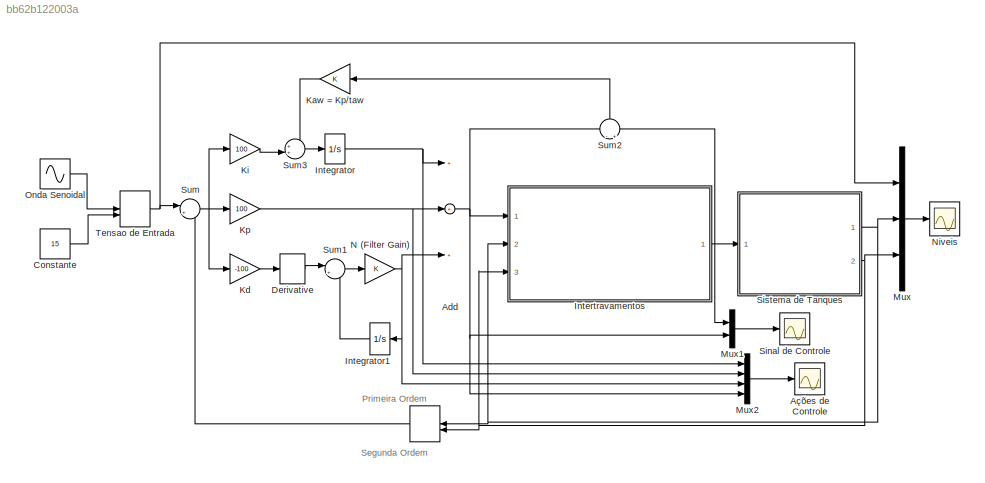
MODEL slx_bb62b122003a
KIND model
CONFIG AbsTol = auto
CONFIG FixedStep = 0.1
CONFIG MaxStep = 5e-1
CONFIG MinStep = auto
CONFIG RelTol = 1e-3
CONFIG SampleTimeConstraint = Unconstrained
CONFIG Solver = ode45
CONFIG SolverMode = Auto
CONFIG SolverName = ode45
CONFIG StartTime = 0.0
CONFIG StopTime = 240
BLOCK [Scope] 	Ações de Controle
  Floating = off
  LegendLocations = 0.92535     0.88822    0.054687    0.068013
  MaxDataPoints = 500000
  NumInputPorts = 1
  Ports = [1]
  SaveName = ScopeData1
  SaveToWorkspace = on
  ShowLegends = on
  TimeRange = 240
BLOCK [ManualSwitch]  
BLOCK [Sum] Add
  InputSameDT = off
  Inputs = +++
  OutDataTypeStr = Inherit: Inherit via internal rule
  Ports = [3, 1]
  SaturateOnIntegerOverflow = off
BLOCK [Constant] Constante
  Value = 15
BLOCK [Derivative] Derivative
BLOCK [Integrator] Integrator
  Ports = [1, 1]
BLOCK [Integrator] Integrator1
  Ports = [1, 1]
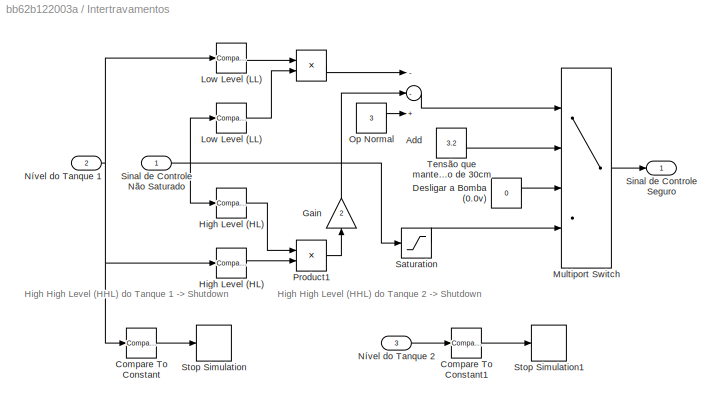
BLOCK [SubSystem] Intertravamentos
  Ports = [3, 1]
  RequestExecContextInheritance = off
BLOCK [Product] Intertravamentos/ 
  InputSameDT = off
  OutDataTypeStr = Inherit: Inherit via internal rule
  Ports = [2, 1]
  RndMeth = Floor
  SaturateOnIntegerOverflow = off
BLOCK [Reference] Intertravamentos/ High Level (HL)  REF=simulink/Logic and Bit
Operations/Compare
To Constant
  OutDataTypeStr = boolean
  Ports = [1, 1]
  SourceBlock = simulink/Logic and Bit\nOperations/Compare\nTo Constant
  SourceType = Compare To Constant
  ZeroCross = on
  const = 29
  relop = >=
BLOCK [Reference] Intertravamentos/ Low Level (LL)   REF=simulink/Logic and Bit
Operations/Compare
To Zero
  OutDataTypeStr = boolean
  Ports = [1, 1]
  SourceBlock = simulink/Logic and Bit\nOperations/Compare\nTo Zero
  SourceType = Compare To Zero
  ZeroCross = on
  relop = <
BLOCK [Sum] Intertravamentos/Add
  InputSameDT = off
  Inputs = --+
  OutDataTypeStr = Inherit: Inherit via internal rule
  Ports = [3, 1]
  SaturateOnIntegerOverflow = off
BLOCK [Reference] Intertravamentos/Compare To Constant  REF=simulink/Logic and Bit
Operations/Compare
To Constant
  OutDataTypeStr = boolean
  Ports = [1, 1]
  SourceBlock = simulink/Logic and Bit\nOperations/Compare\nTo Constant
  SourceType = Compare To Constant
  ZeroCross = on
  const = 30
  relop = >=
BLOCK [Reference] Intertravamentos/Compare To Constant1  REF=simulink/Logic and Bit
Operations/Compare
To Constant
  OutDataTypeStr = boolean
  Ports = [1, 1]
  SourceBlock = simulink/Logic and Bit\nOperations/Compare\nTo Constant
  SourceType = Compare To Constant
  ZeroCross = on
  const = 30
  relop = >=
BLOCK [Constant] Intertravamentos/Desligar a Bomba (0.0v)
  Value = 0
BLOCK [Gain] Intertravamentos/Gain
  Gain = 2
  OutDataTypeStr = Inherit: Inherit via internal rule
  ParamDataTypeStr = Inherit: Inherit via internal rule
  SaturateOnIntegerOverflow = off
BLOCK [Reference] Intertravamentos/High Level (HL)  REF=simulink/Logic and Bit
Operations/Compare
To Constant
  OutDataTypeStr = boolean
  Ports = [1, 1]
  SourceBlock = simulink/Logic and Bit\nOperations/Compare\nTo Constant
  SourceType = Compare To Constant
  ZeroCross = on
  const = 3.2
  relop = >=
BLOCK [Reference] Intertravamentos/Low Level (LL)  REF=simulink/Logic and Bit
Operations/Compare
To Constant
  OutDataTypeStr = boolean
  Ports = [1, 1]
  SourceBlock = simulink/Logic and Bit\nOperations/Compare\nTo Constant
  SourceType = Compare To Constant
  ZeroCross = on
  const = 3.0
  relop = <=
BLOCK [MultiPortSwitch] Intertravamentos/Multiport Switch
  InputSameDT = off
  Ports = [4, 1]
  SaturateOnIntegerOverflow = off
BLOCK [Inport] Intertravamentos/Nível do Tanque 1
  IconDisplay = Port number
  Port = 2
BLOCK [Inport] Intertravamentos/Nível do Tanque 2
  IconDisplay = Port number
  Port = 3
BLOCK [Constant] Intertravamentos/Op Normal
  Value = 3
BLOCK [Product] Intertravamentos/Product1
  InputSameDT = off
  OutDataTypeStr = Inherit: Inherit via internal rule
  Ports = [2, 1]
  RndMeth = Floor
  SaturateOnIntegerOverflow = off
BLOCK [Saturate] Intertravamentos/Saturation
  InputPortMap = u0
  Ports = [1, 1]
BLOCK [Inport] Intertravamentos/Sinal de Controle Não Saturado
  IconDisplay = Port number
BLOCK [Outport] Intertravamentos/Sinal de Controle Seguro
  IconDisplay = Port number
BLOCK [Stop] Intertravamentos/Stop Simulation
BLOCK [Stop] Intertravamentos/Stop Simulation1
BLOCK [Constant] Intertravamentos/Tensão que mantem nível próximo de 30cm
  Value = 3.2
BLOCK [Gain] Kaw = Kp//taw
  OutDataTypeStr = Inherit: Inherit via internal rule
  ParamDataTypeStr = Inherit: Inherit via internal rule
  SaturateOnIntegerOverflow = off
BLOCK [Gain] Kd
  Gain = -100
  OutDataTypeStr = Inherit: Inherit via internal rule
  ParamDataTypeStr = Inherit: Inherit via internal rule
  SaturateOnIntegerOverflow = off
BLOCK [Gain] Ki
  Gain = 100
  OutDataTypeStr = Inherit: Inherit via internal rule
  ParamDataTypeStr = Inherit: Inherit via internal rule
  SaturateOnIntegerOverflow = off
BLOCK [Gain] Kp
  Gain = 100
  OutDataTypeStr = Inherit: Inherit via internal rule
  ParamDataTypeStr = Inherit: Inherit via internal rule
  SaturateOnIntegerOverflow = off
BLOCK [Mux] Mux
  DisplayOption = bar
  Inputs = 3
  Ports = [3, 1]
BLOCK [Mux] Mux1
  DisplayOption = bar
  Inputs = 2
  Ports = [2, 1]
BLOCK [Mux] Mux2
  DisplayOption = bar
  Ports = [4, 1]
BLOCK [Gain] N (Filter Gain)
  OutDataTypeStr = Inherit: Inherit via internal rule
  ParamDataTypeStr = Inherit: Inherit via internal rule
  SaturateOnIntegerOverflow = off
BLOCK [Scope] Niveis
  Floating = off
  LegendLocations = 0.73991     0.76368     0.21223     0.12852
  MaxDataPoints = 500000
  NumInputPorts = 1
  Ports = [1]
  SaveName = Niveis
  SaveToWorkspace = on
  ShowLegends = on
  TimeRange = 240
  YMax = 35
  ZoomMode = yonly
BLOCK [Sin] Onda Senoidal
  Amplitude = 2
  Bias = 2
  Frequency = 0.2
  Ports = [0, 1]
  SampleTime = 0
BLOCK [Scope] Sinal de Controle
  Floating = off
  MaxDataPoints = 500000
  NumInputPorts = 1
  Ports = [1]
  SaveToWorkspace = on
  ShowLegends = on
  TimeRange = 240
  YMax = 6
  YMin = -1
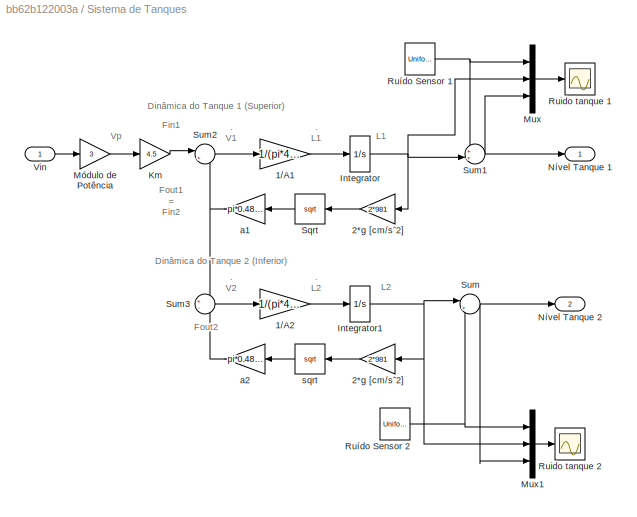
BLOCK [SubSystem] Sistema de Tanques 
  Ports = [1, 2]
  RequestExecContextInheritance = off
BLOCK [Gain] Sistema de Tanques /1//A1
  Gain = 1/(pi*4.45^2/4)
  OutDataTypeStr = Inherit: Inherit via internal rule
  ParamDataTypeStr = Inherit: Inherit via internal rule
  SaturateOnIntegerOverflow = off
BLOCK [Gain] Sistema de Tanques /1//A2
  Gain = 1/(pi*4.45^2/4)
  OutDataTypeStr = Inherit: Inherit via internal rule
  ParamDataTypeStr = Inherit: Inherit via internal rule
  SaturateOnIntegerOverflow = off
BLOCK [Gain] Sistema de Tanques /2*g  [cm//sˆ2]
  Gain = 2*981
  OutDataTypeStr = Inherit: Inherit via internal rule
  ParamDataTypeStr = Inherit: Inherit via internal rule
  SaturateOnIntegerOverflow = off
BLOCK [Gain] Sistema de Tanques /2*g [cm//sˆ2]
  Gain = 2*981
  OutDataTypeStr = Inherit: Inherit via internal rule
  ParamDataTypeStr = Inherit: Inherit via internal rule
  SaturateOnIntegerOverflow = off
BLOCK [Integrator] Sistema de Tanques /Integrator
  LowerSaturationLimit = -2
  Ports = [1, 1]
  UpperSaturationLimit = 35
BLOCK [Integrator] Sistema de Tanques /Integrator1
  LowerSaturationLimit = -2
  Ports = [1, 1]
  UpperSaturationLimit = 35
BLOCK [Gain] Sistema de Tanques /Km
  Gain = 4.5
  OutDataTypeStr = Inherit: Inherit via internal rule
  ParamDataTypeStr = Inherit: Inherit via internal rule
  SaturateOnIntegerOverflow = off
BLOCK [Mux] Sistema de Tanques /Mux
  DisplayOption = bar
  Inputs = 3
  Ports = [3, 1]
BLOCK [Mux] Sistema de Tanques /Mux1
  DisplayOption = bar
  Inputs = 3
  Ports = [3, 1]
BLOCK [Gain] Sistema de Tanques /Módulo de Potência
  Gain = 3
  OutDataTypeStr = Inherit: Inherit via internal rule
  ParamDataTypeStr = Inherit: Inherit via internal rule
  SaturateOnIntegerOverflow = off
BLOCK [Outport] Sistema de Tanques /Nível Tanque 1
  IconDisplay = Port number
BLOCK [Outport] Sistema de Tanques /Nível Tanque 2
  IconDisplay = Port number
  Port = 2
BLOCK [Scope] Sistema de Tanques /Ruido tanque 1
  Floating = off
  NumInputPorts = 1
  Ports = [1]
  SaveName = ScopeData3
  TimeRange = 50
  YMax = 20
  YMin = 0
BLOCK [Scope] Sistema de Tanques /Ruido tanque 2
  Floating = off
  NumInputPorts = 1
  Ports = [1]
  SaveName = ScopeData4
  TimeRange = 50
  YMax = 20
  YMin = 0
BLOCK [UniformRandomNumber] Sistema de Tanques /Ruído Sensor 1
  Maximum = 0.1
  Minimum = -0.1
  SampleTime = 0.5
  Seed = round(rand(1)*100)
BLOCK [UniformRandomNumber] Sistema de Tanques /Ruído Sensor 2
  Maximum = 0.1
  Minimum = -0.1
  SampleTime = 0.7
  Seed = round(rand(1)*100)
BLOCK [Sqrt] Sistema de Tanques /Sqrt
BLOCK [Sum] Sistema de Tanques /Sum
  IconShape = round
  InputSameDT = off
  Inputs = |++
  OutDataTypeStr = Inherit: Inherit via internal rule
  Ports = [2, 1]
  SaturateOnIntegerOverflow = off
BLOCK [Sum] Sistema de Tanques /Sum1
  IconShape = round
  InputSameDT = off
  Inputs = ++|
  OutDataTypeStr = Inherit: Inherit via internal rule
  Ports = [2, 1]
  SaturateOnIntegerOverflow = off
BLOCK [Sum] Sistema de Tanques /Sum2
  IconShape = round
  InputSameDT = off
  Inputs = |+-
  OutDataTypeStr = Inherit: Inherit via internal rule
  Ports = [2, 1]
  SaturateOnIntegerOverflow = off
BLOCK [Sum] Sistema de Tanques /Sum3
  IconShape = round
  InputSameDT = off
  Inputs = +-
  OutDataTypeStr = Inherit: Inherit via internal rule
  Ports = [2, 1]
  SaturateOnIntegerOverflow = off
BLOCK [Inport] Sistema de Tanques /Vin
  IconDisplay = Port number
BLOCK [Gain] Sistema de Tanques /a1
  Gain = pi*0.48^2/4
  OutDataTypeStr = Inherit: Inherit via internal rule
  ParamDataTypeStr = Inherit: Inherit via internal rule
  SaturateOnIntegerOverflow = off
BLOCK [Gain] Sistema de Tanques /a2
  Gain = pi*0.48^2/4
  OutDataTypeStr = Inherit: Inherit via internal rule
  ParamDataTypeStr = Inherit: Inherit via internal rule
  SaturateOnIntegerOverflow = off
BLOCK [Sqrt] Sistema de Tanques /sqrt
BLOCK [Sum] Sum
  IconShape = round
  InputSameDT = off
  Inputs = |+-
  OutDataTypeStr = Inherit: Inherit via internal rule
  Ports = [2, 1]
  SaturateOnIntegerOverflow = off
BLOCK [Sum] Sum1
  IconShape = round
  InputSameDT = off
  Inputs = |+-
  OutDataTypeStr = Inherit: Inherit via internal rule
  Ports = [2, 1]
  SaturateOnIntegerOverflow = off
BLOCK [Sum] Sum2
  IconShape = round
  InputSameDT = off
  Inputs = -|+
  OutDataTypeStr = Inherit: Inherit via internal rule
  Ports = [2, 1]
  SaturateOnIntegerOverflow = off
BLOCK [Sum] Sum3
  IconShape = round
  InputSameDT = off
  Inputs = ++|
  OutDataTypeStr = Inherit: Inherit via internal rule
  Ports = [2, 1]
  SaturateOnIntegerOverflow = off
BLOCK [ManualSwitch] Tensao de Entrada
  CurrentSetting = 0
ANNOTATION (root): Primeira Ordem
ANNOTATION (root): Segunda Ordem
ANNOTATION Intertravamentos: High High Level (HHL) do Tanque 1 -> Shutdown
ANNOTATION Intertravamentos: High High Level (HHL) do Tanque 2 -> Shutdown
ANNOTATION Sistema de Tanques : . L1
ANNOTATION Sistema de Tanques : . L2
ANNOTATION Sistema de Tanques : . V1
ANNOTATION Sistema de Tanques : . V2
ANNOTATION Sistema de Tanques : Fout1 = Fin2
ANNOTATION Sistema de Tanques : Fout2
ANNOTATION Sistema de Tanques : Dinâmica do Tanque 1 (Superior)
ANNOTATION Sistema de Tanques : Dinâmica do Tanque 2 (Inferior)
ANNOTATION Sistema de Tanques : Fin1
ANNOTATION Sistema de Tanques : L1
ANNOTATION Sistema de Tanques : L2
ANNOTATION Sistema de Tanques : Vp
LINE  :1 -> Sum:2
NET Add:1 -> Intertravamentos:1, Mux1:2, Mux2:4, Sum2:1
LINE Constante:1 -> Tensao de Entrada:2
LINE Derivative:1 -> Sum1:1
LINE Integrator1:1 -> Sum1:2
NET Integrator:1 -> Add:1, Mux2:1
LINE Intertravamentos/ :1 -> Intertravamentos/Add:1
LINE Intertravamentos/ High Level (HL):1 -> Intertravamentos/Product1:2
LINE Intertravamentos/ Low Level (LL) :1 -> Intertravamentos/ :2
LINE Intertravamentos/Add:1 -> Intertravamentos/Multiport Switch:1
LINE Intertravamentos/Compare To Constant1:1 -> Intertravamentos/Stop Simulation1:1
LINE Intertravamentos/Compare To Constant:1 -> Intertravamentos/Stop Simulation:1
LINE Intertravamentos/Desligar a Bomba (0.0v):1 -> Intertravamentos/Multiport Switch:3
LINE Intertravamentos/Gain:1 -> Intertravamentos/Add:2
LINE Intertravamentos/High Level (HL):1 -> Intertravamentos/Product1:1
LINE Intertravamentos/Low Level (LL):1 -> Intertravamentos/ :1
LINE Intertravamentos/Multiport Switch:1 -> Intertravamentos/Sinal de Controle Seguro:1
NET Intertravamentos/Nível do Tanque 1:1 -> Intertravamentos/ High Level (HL):1, Intertravamentos/Compare To Constant:1, Intertravamentos/Low Level (LL):1
LINE Intertravamentos/Nível do Tanque 2:1 -> Intertravamentos/Compare To Constant1:1
LINE Intertravamentos/Op Normal:1 -> Intertravamentos/Add:3
LINE Intertravamentos/Product1:1 -> Intertravamentos/Gain:1
LINE Intertravamentos/Saturation:1 -> Intertravamentos/Multiport Switch:4
NET Intertravamentos/Sinal de Controle Não Saturado:1 -> Intertravamentos/ Low Level (LL) :1, Intertravamentos/High Level (HL):1, Intertravamentos/Saturation:1
LINE Intertravamentos/Tensão que mantem nível próximo de 30cm:1 -> Intertravamentos/Multiport Switch:2
NET Intertravamentos:1 -> Mux1:1, Sistema de Tanques :1, Sum2:2
LINE Kaw = Kp//taw:1 -> Sum3:1
LINE Kd:1 -> Derivative:1
LINE Ki:1 -> Sum3:2
NET Kp:1 -> Add:2, Mux2:2
LINE Mux1:1 -> Sinal de Controle:1
LINE Mux2:1 -> 	Ações de Controle:1
LINE Mux:1 -> Niveis:1
NET N (Filter Gain):1 -> Add:3, Integrator1:1, Mux2:3
LINE Onda Senoidal:1 -> Tensao de Entrada:1
LINE Sistema de Tanques /1//A1:1 -> Sistema de Tanques /Integrator:1
LINE Sistema de Tanques /1//A2:1 -> Sistema de Tanques /Integrator1:1
LINE Sistema de Tanques /2*g  [cm//sˆ2]:1 -> Sistema de Tanques /sqrt:1
LINE Sistema de Tanques /2*g [cm//sˆ2]:1 -> Sistema de Tanques /Sqrt:1
NET Sistema de Tanques /Integrator1:1 -> Sistema de Tanques /2*g  [cm//sˆ2]:1, Sistema de Tanques /Mux1:2, Sistema de Tanques /Sum:1
NET Sistema de Tanques /Integrator:1 -> Sistema de Tanques /2*g [cm//sˆ2]:1, Sistema de Tanques /Mux:2, Sistema de Tanques /Sum1:2
LINE Sistema de Tanques /Km:1 -> Sistema de Tanques /Sum2:1
LINE Sistema de Tanques /Mux1:1 -> Sistema de Tanques /Ruido tanque 2:1
LINE Sistema de Tanques /Mux:1 -> Sistema de Tanques /Ruido tanque 1:1
LINE Sistema de Tanques /Módulo de Potência:1 -> Sistema de Tanques /Km:1
NET Sistema de Tanques /Ruído Sensor 1:1 -> Sistema de Tanques /Mux:1, Sistema de Tanques /Sum1:1
NET Sistema de Tanques /Ruído Sensor 2:1 -> Sistema de Tanques /Mux1:1, Sistema de Tanques /Sum:2
LINE Sistema de Tanques /Sqrt:1 -> Sistema de Tanques /a1:1
NET Sistema de Tanques /Sum1:1 -> Sistema de Tanques /Mux:3, Sistema de Tanques /Nível Tanque 1:1
LINE Sistema de Tanques /Sum2:1 -> Sistema de Tanques /1//A1:1
LINE Sistema de Tanques /Sum3:1 -> Sistema de Tanques /1//A2:1
NET Sistema de Tanques /Sum:1 -> Sistema de Tanques /Mux1:3, Sistema de Tanques /Nível Tanque 2:1
LINE Sistema de Tanques /Vin:1 -> Sistema de Tanques /Módulo de Potência:1
NET Sistema de Tanques /a1:1 -> Sistema de Tanques /Sum2:2, Sistema de Tanques /Sum3:1
LINE Sistema de Tanques /a2:1 -> Sistema de Tanques /Sum3:2
LINE Sistema de Tanques /sqrt:1 -> Sistema de Tanques /a2:1
NET Sistema de Tanques :1 ->  :1, Intertravamentos:2, Mux:2
NET Sistema de Tanques :2 ->  :2, Intertravamentos:3, Mux:3
LINE Sum1:1 -> N (Filter Gain):1
LINE Sum2:1 -> Kaw = Kp//taw:1
LINE Sum3:1 -> Integrator:1
NET Sum:1 -> Kd:1, Ki:1, Kp:1
NET Tensao de Entrada:1 -> Mux:1, Sum:1
note: NET lines group one-source signal fan-out (src -> all destinations, sorted); 1:1 wires keep LINE
